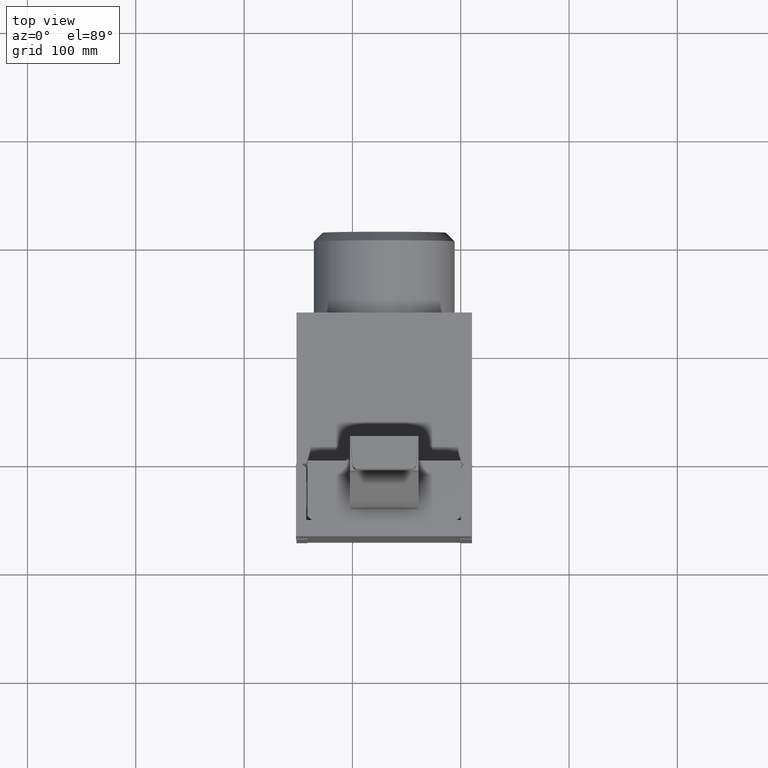
[diagram: clean part render]
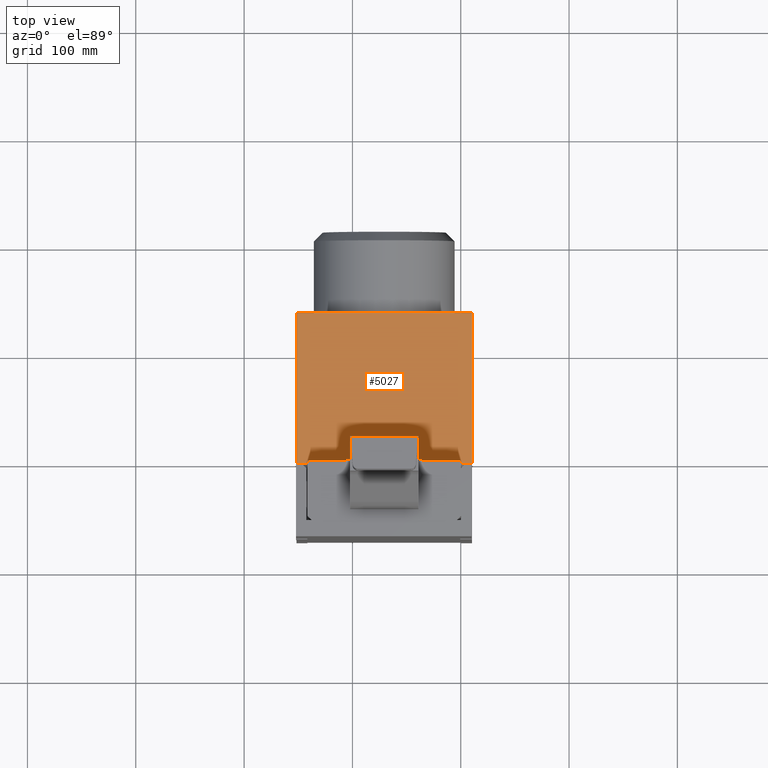
[diagram: same view with one face highlighted and labeled with its STEP entity id]
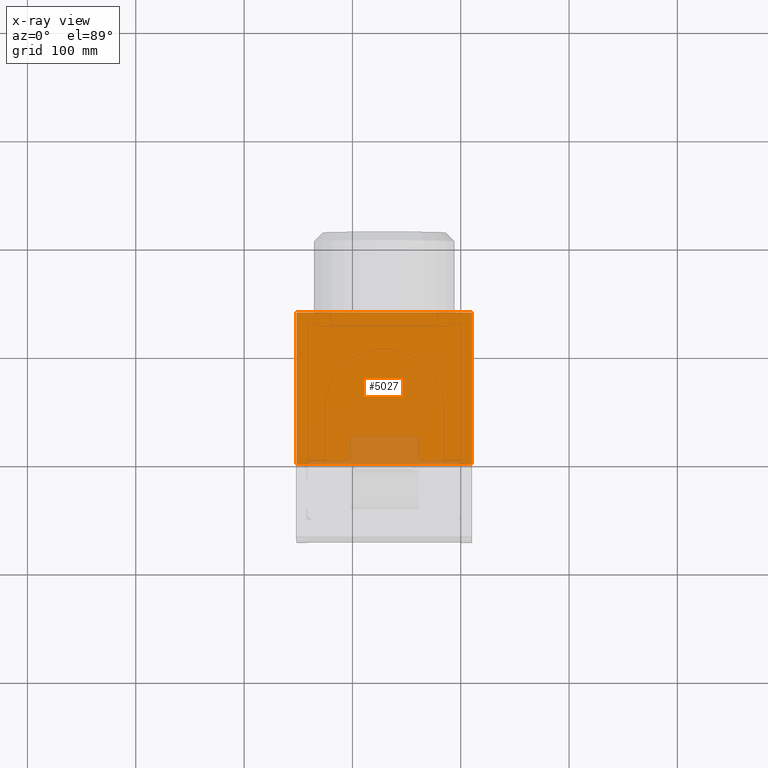
[diagram: x-ray of the same camera — body ghosted, the highlighted face saturated]
A machine part, top view. The second image highlights one B-rep face of the part: STEP entity #5027.
The next image is the same camera in x-ray: the body ghosted, the highlighted face saturated — about 8% of this face is hidden behind the body in this view.
In plain terms, the highlighted planar face has unit normal (0, 0, 1).
Its self-contained STEP definition (entity closure, byte-faithful):
#4027=CARTESIAN_POINT('',(-251.59263777450502,98.550266853996291,210.09999999999988));
#4028=VERTEX_POINT('',#4027);
#4035=CARTESIAN_POINT('',(-251.59263777450516,238.56537027460939,210.10000000000008));
#4036=VERTEX_POINT('',#4035);
#4037=CARTESIAN_POINT('',(-251.59263777450505,98.550266853996291,210.09999999999988));
#4038=DIRECTION('',(0.0,1.0,0.0));
#4039=VECTOR('',#4038,140.01510342061312);
#4040=LINE('',#4037,#4039);
#4041=EDGE_CURVE('',#4028,#4036,#4040,.T.);
#4568=CARTESIAN_POINT('',(-89.592637774505022,238.56537027460939,210.09999999999997));
#4569=VERTEX_POINT('',#4568);
#4576=CARTESIAN_POINT('',(-89.592637774505093,98.550266853996348,210.09999999999988));
#4577=VERTEX_POINT('',#4576);
#4578=CARTESIAN_POINT('',(-89.592637774505093,238.56537027460939,210.09999999999997));
#4579=DIRECTION('',(0.0,-1.0,0.0));
#4580=VECTOR('',#4579,140.01510342061303);
#4581=LINE('',#4578,#4580);
#4582=EDGE_CURVE('',#4569,#4577,#4581,.T.);
#4695=CARTESIAN_POINT('',(-89.779160837767051,98.565370274609478,210.09999999999988));
#4696=VERTEX_POINT('',#4695);
#4697=CARTESIAN_POINT('',(-89.779160837767051,98.565370274609478,210.09999999999988));
#4698=DIRECTION('',(0.996737681970027,-0.080709313843057,0.0));
#4699=VECTOR('',#4698,0.187133552424044);
#4700=LINE('',#4697,#4699);
#4701=EDGE_CURVE('',#4696,#4577,#4700,.T.);
#4718=CARTESIAN_POINT('',(-251.40611471124311,98.565370274609478,210.09999999999988));
#4719=VERTEX_POINT('',#4718);
#4726=CARTESIAN_POINT('',(-251.40611471124311,98.56537027460945,210.09999999999988));
#4727=DIRECTION('',(-0.996737681970019,-0.080709313843151,0.0));
#4728=VECTOR('',#4727,0.187133552424003);
#4729=LINE('',#4726,#4728);
#4730=EDGE_CURVE('',#4719,#4028,#4729,.T.);
#5004=CARTESIAN_POINT('',(-170.59263777450502,168.60690993289623,210.09999999999991));
#5005=DIRECTION('',(0.0,0.0,1.0));
#5006=DIRECTION('',(1.0,0.0,0.0));
#5007=AXIS2_PLACEMENT_3D('',#5004,#5005,#5006);
#5008=PLANE('',#5007);
#5009=ORIENTED_EDGE('',*,*,#4582,.F.);
#5010=CARTESIAN_POINT('',(-251.59263777450516,238.56537027460939,210.10000000000008));
#5011=DIRECTION('',(1.0,0.0,0.0));
#5012=VECTOR('',#5011,162.00000000000014);
#5013=LINE('',#5010,#5012);
#5014=EDGE_CURVE('',#4036,#4569,#5013,.T.);
#5015=ORIENTED_EDGE('',*,*,#5014,.F.);
#5016=ORIENTED_EDGE('',*,*,#4041,.F.);
#5017=ORIENTED_EDGE('',*,*,#4730,.F.);
#5018=CARTESIAN_POINT('',(-251.40611471124311,98.565370274609478,210.09999999999988));
#5019=DIRECTION('',(1.0,0.0,0.0));
#5020=VECTOR('',#5019,161.62695387347605);
#5021=LINE('',#5018,#5020);
#5022=EDGE_CURVE('',#4719,#4696,#5021,.T.);
#5023=ORIENTED_EDGE('',*,*,#5022,.T.);
#5024=ORIENTED_EDGE('',*,*,#4701,.T.);
#5025=EDGE_LOOP('',(#5009,#5015,#5016,#5017,#5023,#5024));
#5026=FACE_OUTER_BOUND('',#5025,.T.);
#5027=ADVANCED_FACE('',(#5026),#5008,.T.);